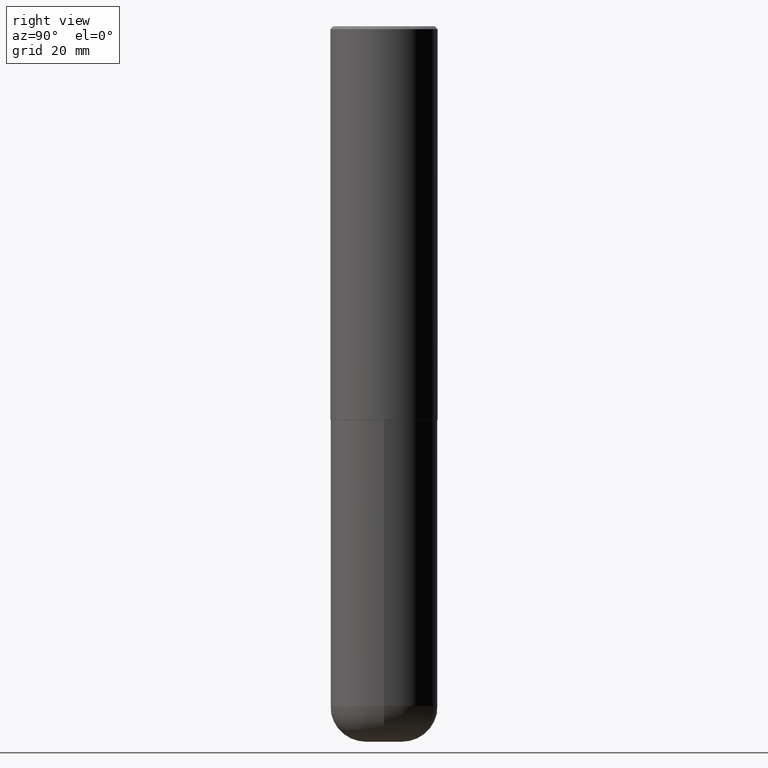
[diagram: clean part render]
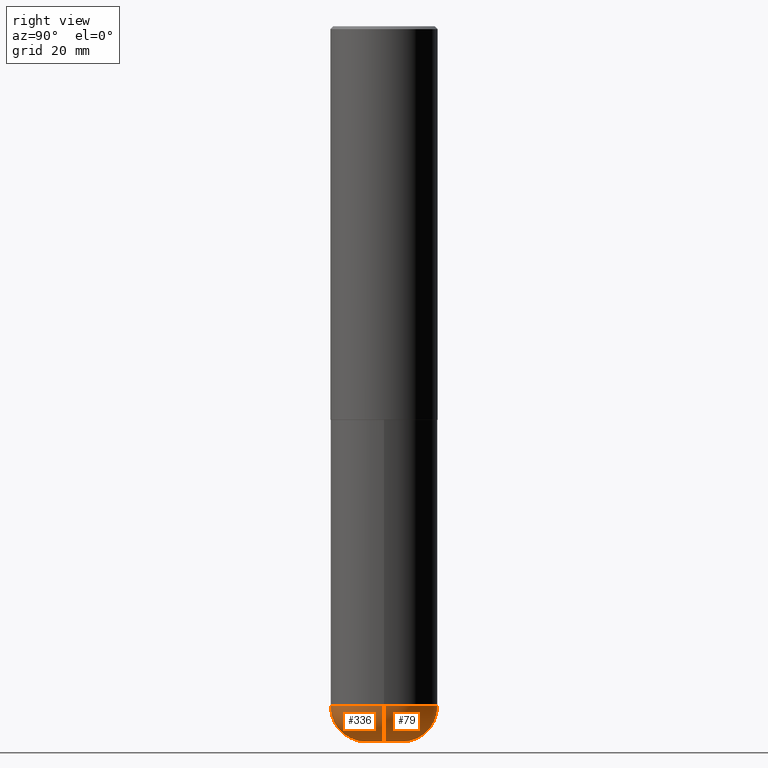
[diagram: same view with one multi-face feature highlighted, each face labeled with its STEP entity id]
A machine part, right view. The highlighted faces form ONE feature: a constant-radius fillet chain: 2 tangent blend faces with common blend radius 6.35 mm. The faces share edges in the B-rep.
Their STEP definitions:
[1] entity #79 (Torus):
#1 = AXIS2_PLACEMENT_3D ( 'NONE', #287, #129, #194 ) ;
#7 = EDGE_CURVE ( 'NONE', #295, #418, #24, .T. ) ;
#24 = CIRCLE ( 'NONE', #73, 0.2500000000000003886 ) ;
#27 = VERTEX_POINT ( 'NONE', #135 ) ;
#39 = DIRECTION ( 'NONE',  ( -2.445468806185136597E-29, 3.491481338843145583E-15, 1.000000000000000000 ) ) ;
#61 = ORIENTED_EDGE ( 'NONE', *, *, #234, .F. ) ;
#72 = DIRECTION ( 'NONE',  ( -2.445468806185136597E-29, 3.491481338843145583E-15, 1.000000000000000000 ) ) ;
#73 = AXIS2_PLACEMENT_3D ( 'NONE', #405, #200, #165 ) ;
#76 = AXIS2_PLACEMENT_3D ( 'NONE', #172, #72, #309 ) ;
#79 = ADVANCED_FACE ( 'NONE', ( #388 ), #411, .T. ) ;
#82 = CIRCLE ( 'NONE', #349, 0.1250000000000000555 ) ;
#93 = ORIENTED_EDGE ( 'NONE', *, *, #167, .F. ) ;
#98 = CIRCLE ( 'NONE', #229, 0.2500000000000003886 ) ;
#129 = DIRECTION ( 'NONE',  ( -2.445468806185136597E-29, 3.491481338843145583E-15, 1.000000000000000000 ) ) ;
#135 = CARTESIAN_POINT ( 'NONE',  ( 0.3750000000000002220, -1.920314736363729341E-14, -4.750000000000000000 ) ) ;
#165 = DIRECTION ( 'NONE',  ( -1.000000000000000000, 7.105427357601000281E-15, 0.000000000000000000 ) ) ;
#167 = EDGE_CURVE ( 'NONE', #173, #27, #98, .T. ) ;
#172 = CARTESIAN_POINT ( 'NONE',  ( 1.161597682937940108E-28, -1.658453635950494339E-14, -4.750000000000000000 ) ) ;
#173 = VERTEX_POINT ( 'NONE', #199 ) ;
#194 = DIRECTION ( 'NONE',  ( 1.000000000000000000, -6.982962677686270655E-15, 4.883557194083114583E-29 ) ) ;
#199 = CARTESIAN_POINT ( 'NONE',  ( 0.1250000000000000555, -1.833027702892651638E-14, -5.000000000000000888 ) ) ;
#200 = DIRECTION ( 'NONE',  ( 7.105427357601001859E-15, 1.000000000000000000, -3.491481338843145583E-15 ) ) ;
#207 = ORIENTED_EDGE ( 'NONE', *, *, #7, .T. ) ;
#229 = AXIS2_PLACEMENT_3D ( 'NONE', #297, #230, #416 ) ;
#230 = DIRECTION ( 'NONE',  ( -6.982962677686266711E-15, -1.000000000000000000, 3.491481338843145583E-15 ) ) ;
#234 = EDGE_CURVE ( 'NONE', #27, #418, #327, .T. ) ;
#248 = CARTESIAN_POINT ( 'NONE',  ( 1.222734403092568523E-28, -1.745740669421573304E-14, -5.000000000000000888 ) ) ;
#254 = CARTESIAN_POINT ( 'NONE',  ( -0.3750000000000002220, -1.392000110040456296E-14, -4.750000000000000000 ) ) ;
#260 = ORIENTED_EDGE ( 'NONE', *, *, #303, .T. ) ;
#271 = EDGE_LOOP ( 'NONE', ( #260, #207, #61, #93 ) ) ;
#282 = CARTESIAN_POINT ( 'NONE',  ( -0.1250000000000000555, -1.524461468746008302E-14, -5.000000000000000888 ) ) ;
#287 = CARTESIAN_POINT ( 'NONE',  ( 1.161597682937940108E-28, -1.658453635950494339E-14, -4.750000000000000000 ) ) ;
#295 = VERTEX_POINT ( 'NONE', #282 ) ;
#297 = CARTESIAN_POINT ( 'NONE',  ( 0.1250000000000000278, -1.745740669421572673E-14, -4.750000000000000000 ) ) ;
#303 = EDGE_CURVE ( 'NONE', #173, #295, #82, .T. ) ;
#309 = DIRECTION ( 'NONE',  ( 1.000000000000000000, -6.982962677686269077E-15, 0.000000000000000000 ) ) ;
#327 = CIRCLE ( 'NONE', #76, 0.3749999999999999445 ) ;
#349 = AXIS2_PLACEMENT_3D ( 'NONE', #248, #39, #373 ) ;
#373 = DIRECTION ( 'NONE',  ( 1.000000000000000000, -6.982962677686275388E-15, 0.000000000000000000 ) ) ;
#388 = FACE_OUTER_BOUND ( 'NONE', #271, .T. ) ;
#405 = CARTESIAN_POINT ( 'NONE',  ( -0.1250000000000000278, -1.569635793980481500E-14, -4.750000000000000000 ) ) ;
#411 = TOROIDAL_SURFACE ( 'NONE', #1, 0.1250000000000000278, 0.2500000000000003886 ) ;
#416 = DIRECTION ( 'NONE',  ( 1.000000000000000000, -6.982962677686259611E-15, 0.000000000000000000 ) ) ;
#418 = VERTEX_POINT ( 'NONE', #254 ) ;
[2] entity #336 (Torus):
#6 = FACE_OUTER_BOUND ( 'NONE', #268, .T. ) ;
#7 = EDGE_CURVE ( 'NONE', #295, #418, #24, .T. ) ;
#8 = ORIENTED_EDGE ( 'NONE', *, *, #350, .F. ) ;
#9 = DIRECTION ( 'NONE',  ( 1.000000000000000000, -6.982962677686270655E-15, 4.883557194083114583E-29 ) ) ;
#24 = CIRCLE ( 'NONE', #73, 0.2500000000000003886 ) ;
#27 = VERTEX_POINT ( 'NONE', #135 ) ;
#51 = EDGE_CURVE ( 'NONE', #295, #173, #310, .T. ) ;
#64 = ORIENTED_EDGE ( 'NONE', *, *, #51, .T. ) ;
#73 = AXIS2_PLACEMENT_3D ( 'NONE', #405, #200, #165 ) ;
#89 = DIRECTION ( 'NONE',  ( 1.000000000000000000, -6.982962677686275388E-15, 0.000000000000000000 ) ) ;
#98 = CIRCLE ( 'NONE', #229, 0.2500000000000003886 ) ;
#109 = DIRECTION ( 'NONE',  ( 1.000000000000000000, -6.982962677686269077E-15, 0.000000000000000000 ) ) ;
#128 = TOROIDAL_SURFACE ( 'NONE', #399, 0.1250000000000000278, 0.2500000000000003886 ) ;
#135 = CARTESIAN_POINT ( 'NONE',  ( 0.3750000000000002220, -1.920314736363729341E-14, -4.750000000000000000 ) ) ;
#146 = AXIS2_PLACEMENT_3D ( 'NONE', #264, #417, #89 ) ;
#165 = DIRECTION ( 'NONE',  ( -1.000000000000000000, 7.105427357601000281E-15, 0.000000000000000000 ) ) ;
#167 = EDGE_CURVE ( 'NONE', #173, #27, #98, .T. ) ;
#173 = VERTEX_POINT ( 'NONE', #199 ) ;
#188 = ORIENTED_EDGE ( 'NONE', *, *, #167, .T. ) ;
#195 = ORIENTED_EDGE ( 'NONE', *, *, #7, .F. ) ;
#199 = CARTESIAN_POINT ( 'NONE',  ( 0.1250000000000000555, -1.833027702892651638E-14, -5.000000000000000888 ) ) ;
#200 = DIRECTION ( 'NONE',  ( 7.105427357601001859E-15, 1.000000000000000000, -3.491481338843145583E-15 ) ) ;
#229 = AXIS2_PLACEMENT_3D ( 'NONE', #297, #230, #416 ) ;
#230 = DIRECTION ( 'NONE',  ( -6.982962677686266711E-15, -1.000000000000000000, 3.491481338843145583E-15 ) ) ;
#238 = AXIS2_PLACEMENT_3D ( 'NONE', #275, #368, #109 ) ;
#254 = CARTESIAN_POINT ( 'NONE',  ( -0.3750000000000002220, -1.392000110040456296E-14, -4.750000000000000000 ) ) ;
#264 = CARTESIAN_POINT ( 'NONE',  ( 1.222734403092568523E-28, -1.745740669421573304E-14, -5.000000000000000888 ) ) ;
#268 = EDGE_LOOP ( 'NONE', ( #195, #64, #188, #8 ) ) ;
#272 = DIRECTION ( 'NONE',  ( -2.445468806185136597E-29, 3.491481338843145583E-15, 1.000000000000000000 ) ) ;
#275 = CARTESIAN_POINT ( 'NONE',  ( 1.161597682937940108E-28, -1.658453635950494339E-14, -4.750000000000000000 ) ) ;
#282 = CARTESIAN_POINT ( 'NONE',  ( -0.1250000000000000555, -1.524461468746008302E-14, -5.000000000000000888 ) ) ;
#295 = VERTEX_POINT ( 'NONE', #282 ) ;
#297 = CARTESIAN_POINT ( 'NONE',  ( 0.1250000000000000278, -1.745740669421572673E-14, -4.750000000000000000 ) ) ;
#310 = CIRCLE ( 'NONE', #146, 0.1250000000000000555 ) ;
#336 = ADVANCED_FACE ( 'NONE', ( #6 ), #128, .T. ) ;
#350 = EDGE_CURVE ( 'NONE', #418, #27, #407, .T. ) ;
#368 = DIRECTION ( 'NONE',  ( -2.445468806185136597E-29, 3.491481338843145583E-15, 1.000000000000000000 ) ) ;
#399 = AXIS2_PLACEMENT_3D ( 'NONE', #408, #272, #9 ) ;
#405 = CARTESIAN_POINT ( 'NONE',  ( -0.1250000000000000278, -1.569635793980481500E-14, -4.750000000000000000 ) ) ;
#407 = CIRCLE ( 'NONE', #238, 0.3749999999999999445 ) ;
#408 = CARTESIAN_POINT ( 'NONE',  ( 1.161597682937940108E-28, -1.658453635950494339E-14, -4.750000000000000000 ) ) ;
#416 = DIRECTION ( 'NONE',  ( 1.000000000000000000, -6.982962677686259611E-15, 0.000000000000000000 ) ) ;
#417 = DIRECTION ( 'NONE',  ( -2.445468806185136597E-29, 3.491481338843145583E-15, 1.000000000000000000 ) ) ;
#418 = VERTEX_POINT ( 'NONE', #254 ) ;